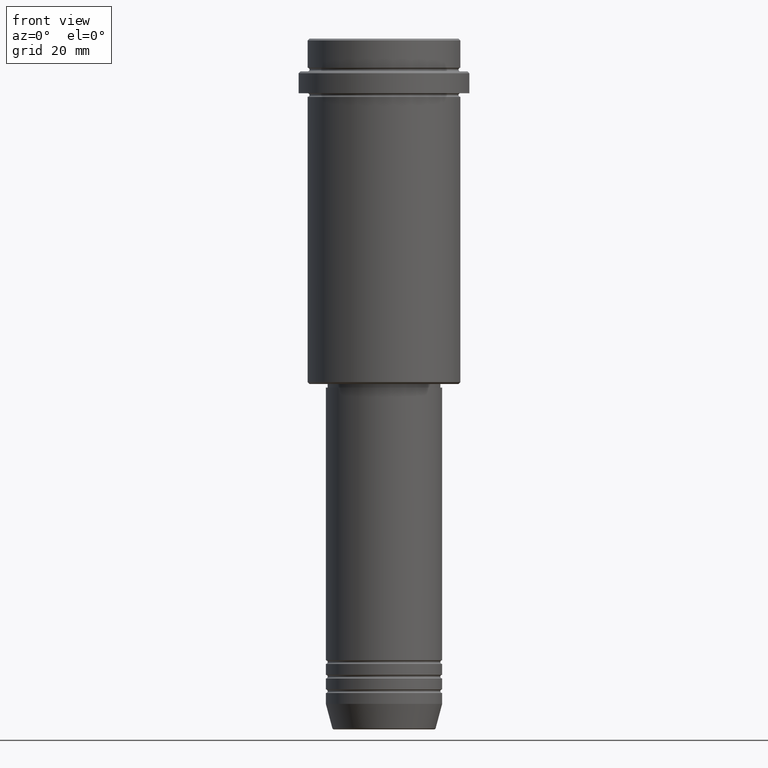
[diagram: clean part render]
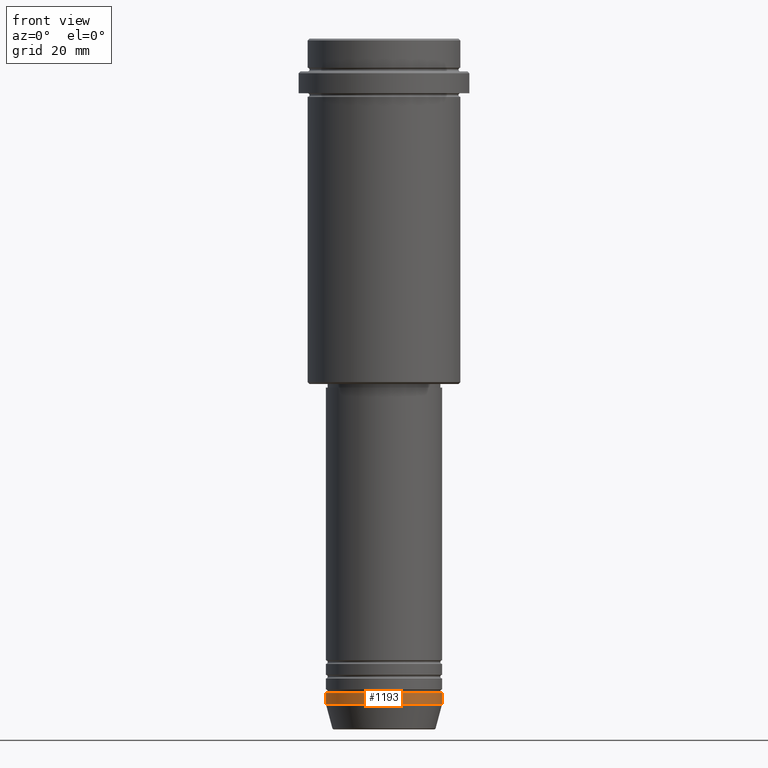
[diagram: same view with one face highlighted and labeled with its STEP entity id]
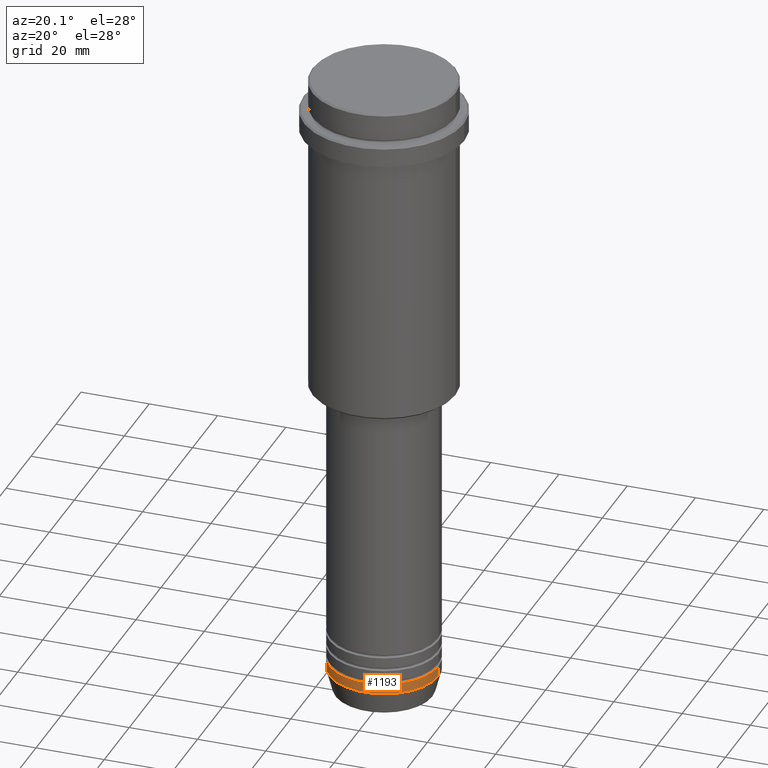
[diagram: same view with one face highlighted and labeled with its STEP entity id]
A machine part, front view. The second image highlights one B-rep face of the part: STEP entity #1193.
A second angle (auxiliary view) of the same face is appended — the face is thin or edge-on in the first view.
In plain terms, the highlighted cylindrical surface (partial cylindrical patch) has radius 16 mm, axis along (-0, -0, 1).
Its self-contained STEP definition (entity closure, byte-faithful):
#54 = CARTESIAN_POINT ( 'NONE',  ( 0.000000000000000000, 0.000000000000000000, 0.000000000000000000 ) ) ;
#61 = AXIS2_PLACEMENT_3D ( 'NONE', #54, #815, #1048 ) ;
#66 = EDGE_CURVE ( 'NONE', #812, #405, #336, .T. ) ;
#91 = VERTEX_POINT ( 'NONE', #115 ) ;
#115 = CARTESIAN_POINT ( 'NONE',  ( 16.00000000000000000, 0.000000000000000000, -180.0000000000000000 ) ) ;
#124 = EDGE_CURVE ( 'NONE', #405, #91, #967, .T. ) ;
#153 = CIRCLE ( 'NONE', #571, 16.00000000000000000 ) ;
#163 = ORIENTED_EDGE ( 'NONE', *, *, #66, .T. ) ;
#198 = EDGE_LOOP ( 'NONE', ( #254, #163, #930, #306 ) ) ;
#254 = ORIENTED_EDGE ( 'NONE', *, *, #338, .F. ) ;
#290 = LINE ( 'NONE', #739, #435 ) ;
#300 = CARTESIAN_POINT ( 'NONE',  ( -16.00000000000000000, 1.959434878635765131E-15, -180.0000000000000000 ) ) ;
#306 = ORIENTED_EDGE ( 'NONE', *, *, #1091, .F. ) ;
#324 = DIRECTION ( 'NONE',  ( 1.000000000000000000, 0.000000000000000000, 0.000000000000000000 ) ) ;
#336 = CIRCLE ( 'NONE', #774, 16.00000000000000000 ) ;
#338 = EDGE_CURVE ( 'NONE', #812, #892, #290, .T. ) ;
#405 = VERTEX_POINT ( 'NONE', #1188 ) ;
#427 = CARTESIAN_POINT ( 'NONE',  ( 0.000000000000000000, 0.000000000000000000, -183.0000000000000000 ) ) ;
#435 = VECTOR ( 'NONE', #519, 1000.000000000000000 ) ;
#519 = DIRECTION ( 'NONE',  ( -0.000000000000000000, -0.000000000000000000, 1.000000000000000000 ) ) ;
#571 = AXIS2_PLACEMENT_3D ( 'NONE', #1112, #1221, #1011 ) ;
#661 = DIRECTION ( 'NONE',  ( -0.000000000000000000, -0.000000000000000000, 1.000000000000000000 ) ) ;
#715 = FACE_OUTER_BOUND ( 'NONE', #198, .T. ) ;
#739 = CARTESIAN_POINT ( 'NONE',  ( -16.00000000000000000, 1.959434878635765131E-15, 0.000000000000000000 ) ) ;
#751 = CARTESIAN_POINT ( 'NONE',  ( -16.00000000000000000, 1.959434878635765131E-15, -183.0000000000000000 ) ) ;
#774 = AXIS2_PLACEMENT_3D ( 'NONE', #427, #661, #324 ) ;
#812 = VERTEX_POINT ( 'NONE', #751 ) ;
#815 = DIRECTION ( 'NONE',  ( -0.000000000000000000, -0.000000000000000000, 1.000000000000000000 ) ) ;
#817 = VECTOR ( 'NONE', #1185, 1000.000000000000000 ) ;
#892 = VERTEX_POINT ( 'NONE', #300 ) ;
#930 = ORIENTED_EDGE ( 'NONE', *, *, #124, .T. ) ;
#967 = LINE ( 'NONE', #1074, #817 ) ;
#1011 = DIRECTION ( 'NONE',  ( 1.000000000000000000, 0.000000000000000000, 0.000000000000000000 ) ) ;
#1048 = DIRECTION ( 'NONE',  ( 1.000000000000000000, 0.000000000000000000, 0.000000000000000000 ) ) ;
#1055 = CYLINDRICAL_SURFACE ( 'NONE', #61, 16.00000000000000000 ) ;
#1074 = CARTESIAN_POINT ( 'NONE',  ( 16.00000000000000000, 0.000000000000000000, 0.000000000000000000 ) ) ;
#1091 = EDGE_CURVE ( 'NONE', #892, #91, #153, .T. ) ;
#1112 = CARTESIAN_POINT ( 'NONE',  ( 0.000000000000000000, 0.000000000000000000, -180.0000000000000000 ) ) ;
#1185 = DIRECTION ( 'NONE',  ( -0.000000000000000000, -0.000000000000000000, 1.000000000000000000 ) ) ;
#1188 = CARTESIAN_POINT ( 'NONE',  ( 16.00000000000000000, 0.000000000000000000, -183.0000000000000000 ) ) ;
#1193 = ADVANCED_FACE ( 'NONE', ( #715 ), #1055, .T. ) ;
#1221 = DIRECTION ( 'NONE',  ( -0.000000000000000000, -0.000000000000000000, 1.000000000000000000 ) ) ;